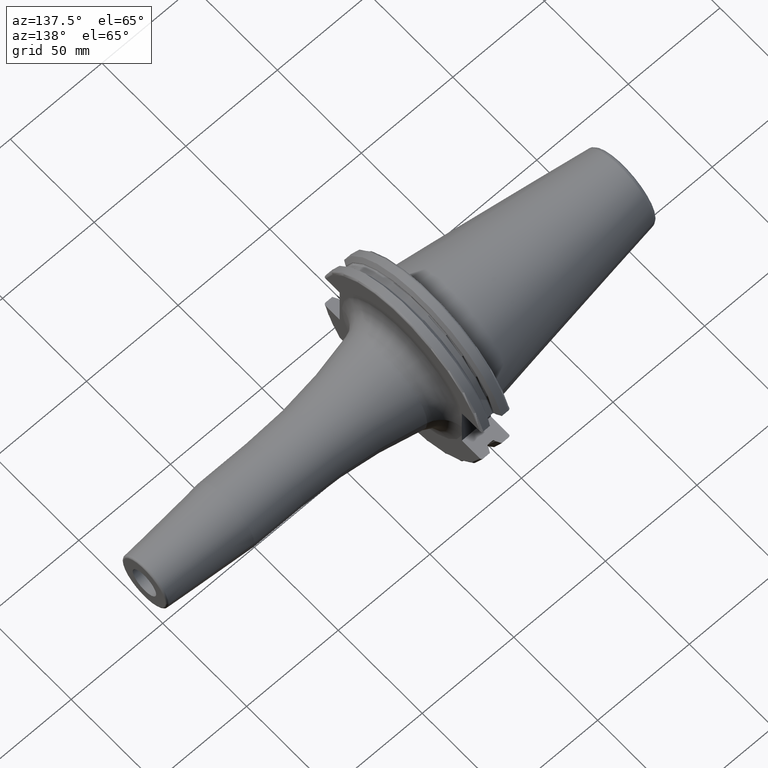
[diagram: clean part render]
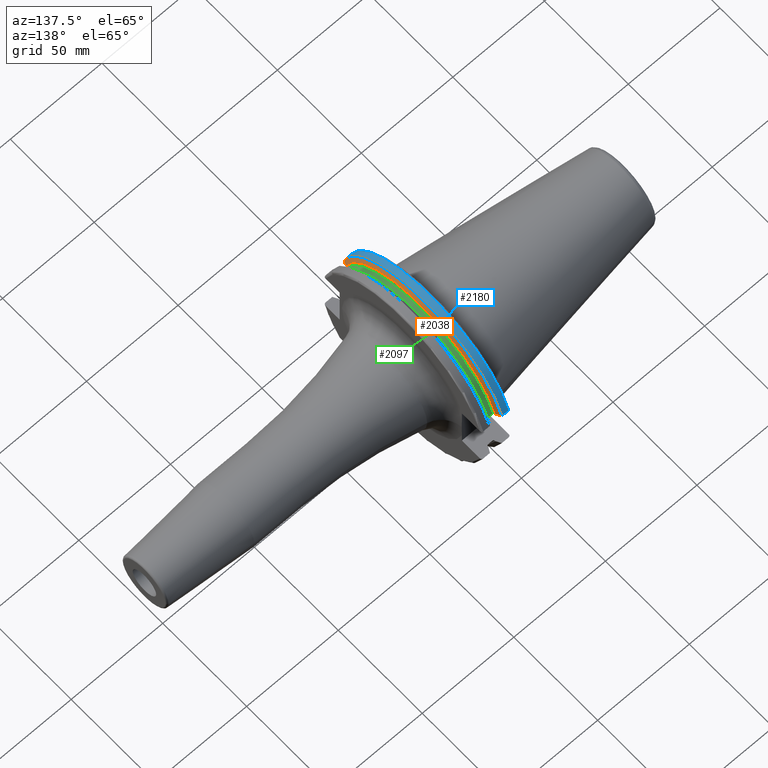
[diagram: same view with three faces highlighted in distinct colors, each labeled with its STEP entity id]
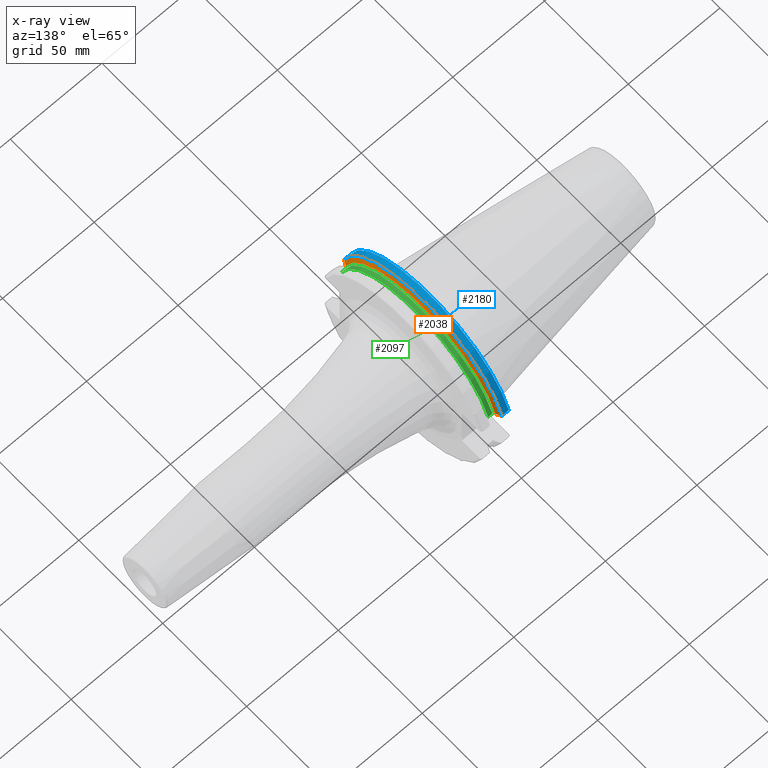
[diagram: x-ray of the same camera — body ghosted, the three highlighted faces saturated]
A machine part, auxiliary view with three faces highlighted in distinct colors.
The next image is the same camera in x-ray (body ghosted, the three faces saturated) — at least one of them is partly hidden behind the body in this view.
Their STEP definitions:

[orange] entity #2038 — the highlighted conical surface has half-angle 60 deg.
#322=CARTESIAN_POINT('',(9.2625E0,0.E0,0.E0));
#323=DIRECTION('',(1.E0,0.E0,0.E0));
#324=DIRECTION('',(0.E0,9.606411165078E-1,2.777924499957E-1));
#325=AXIS2_PLACEMENT_3D('',#322,#323,#324);
#353=CARTESIAN_POINT('',(7.934621614173E0,4.699929686974E1,1.29E1));
#354=CARTESIAN_POINT('',(8.085480915039E0,4.672833723043E1,1.29E1));
#355=CARTESIAN_POINT('',(8.384988643814E0,4.619006057422E1,1.29E1));
#356=CARTESIAN_POINT('',(8.827579780447E0,4.539363402665E1,1.29E1));
#357=CARTESIAN_POINT('',(9.118260754177E0,4.486988275438E1,1.29E1));
#358=CARTESIAN_POINT('',(9.2625E0,4.460981716077E1,1.29E1));
#360=CARTESIAN_POINT('',(9.2625E0,-4.460981716077E1,1.29E1));
#361=CARTESIAN_POINT('',(9.118283773553E0,-4.486984125009E1,1.29E1));
#362=CARTESIAN_POINT('',(8.827633549554E0,-4.539353719098E1,1.29E1));
#363=CARTESIAN_POINT('',(8.385043355543E0,-4.618996220278E1,1.29E1));
#364=CARTESIAN_POINT('',(8.085504386120E0,-4.672829507383E1,1.29E1));
#365=CARTESIAN_POINT('',(7.934621614173E0,-4.699929686974E1,1.29E1));
#500=CARTESIAN_POINT('',(7.934621614173E0,0.E0,0.E0));
#501=DIRECTION('',(1.E0,0.E0,0.E0));
#502=DIRECTION('',(0.E0,9.643354064066E-1,2.646832521159E-1));
#503=AXIS2_PLACEMENT_3D('',#500,#501,#502);
#1316=CARTESIAN_POINT('',(9.2625E0,4.460981716077E1,1.29E1));
#1318=VERTEX_POINT('',#1316);
#1328=CARTESIAN_POINT('',(9.2625E0,-4.460981716077E1,1.29E1));
#1330=VERTEX_POINT('',#1328);
#1354=VERTEX_POINT('',#353);
#1355=VERTEX_POINT('',#365);
#2025=CARTESIAN_POINT('',(8.598560807087E0,0.E0,0.E0));
#2026=DIRECTION('',(-1.E0,0.E0,0.E0));
#2027=DIRECTION('',(0.E0,1.E0,0.E0));
#2028=AXIS2_PLACEMENT_3D('',#2025,#2026,#2027);
#2029=CONICAL_SURFACE('',#2028,4.758752358474E1,6.E1);
#2030=ORIENTED_EDGE('',*,*,#1998,.T.);
#2031=ORIENTED_EDGE('',*,*,#1956,.T.);
#2033=ORIENTED_EDGE('',*,*,#2032,.T.);
#2035=ORIENTED_EDGE('',*,*,#2034,.F.);
#2036=EDGE_LOOP('',(#2030,#2031,#2033,#2035));
#2037=FACE_OUTER_BOUND('',#2036,.F.);
#2038=ADVANCED_FACE('',(#2037),#2029,.T.);
#326=CIRCLE('',#325,4.643754716948E1);
#359=B_SPLINE_CURVE_WITH_KNOTS('',3,(#353,#354,#355,#356,#357,#358),
.UNSPECIFIED.,.F.,.F.,(4,1,1,4),(0.E0,3.333333333333E-1,6.666666666667E-1,1.E0),
.UNSPECIFIED.);
#366=B_SPLINE_CURVE_WITH_KNOTS('',3,(#360,#361,#362,#363,#364,#365),
.UNSPECIFIED.,.F.,.F.,(4,1,1,4),(0.E0,3.333333333333E-1,6.666666666667E-1,1.E0),
.UNSPECIFIED.);
#504=CIRCLE('',#503,4.87375E1);
#1956=EDGE_CURVE('',#1318,#1330,#326,.T.);
#1998=EDGE_CURVE('',#1354,#1318,#359,.T.);
#2032=EDGE_CURVE('',#1330,#1355,#366,.T.);
#2034=EDGE_CURVE('',#1354,#1355,#504,.T.);

[blue] entity #2180 — the highlighted cylindrical surface (partial cylindrical patch) has radius 48.7375 mm, axis along (1, 0, 0).
#353=CARTESIAN_POINT('',(7.934621614173E0,4.699929686974E1,1.29E1));
#365=CARTESIAN_POINT('',(7.934621614173E0,-4.699929686974E1,1.29E1));
#496=DIRECTION('',(1.E0,0.E0,0.E0));
#497=VECTOR('',#496,3.734621614173E0);
#498=CARTESIAN_POINT('',(4.2E0,4.699929686974E1,1.29E1));
#499=LINE('',#498,#497);
#500=CARTESIAN_POINT('',(7.934621614173E0,0.E0,0.E0));
#501=DIRECTION('',(1.E0,0.E0,0.E0));
#502=DIRECTION('',(0.E0,9.643354064066E-1,2.646832521159E-1));
#503=AXIS2_PLACEMENT_3D('',#500,#501,#502);
#505=DIRECTION('',(1.E0,0.E0,0.E0));
#506=VECTOR('',#505,3.734621614173E0);
#507=CARTESIAN_POINT('',(4.2E0,-4.699929686974E1,1.29E1));
#508=LINE('',#507,#506);
#538=CARTESIAN_POINT('',(4.2E0,0.E0,0.E0));
#539=DIRECTION('',(1.E0,0.E0,0.E0));
#540=DIRECTION('',(0.E0,9.643354064066E-1,2.646832521159E-1));
#541=AXIS2_PLACEMENT_3D('',#538,#539,#540);
#1354=VERTEX_POINT('',#353);
#1355=VERTEX_POINT('',#365);
#1382=CARTESIAN_POINT('',(4.2E0,4.699929686974E1,1.29E1));
#1383=VERTEX_POINT('',#1382);
#1386=CARTESIAN_POINT('',(4.2E0,-4.699929686974E1,1.29E1));
#1387=VERTEX_POINT('',#1386);
#2168=CARTESIAN_POINT('',(-1.076325E2,0.E0,0.E0));
#2169=DIRECTION('',(1.E0,0.E0,0.E0));
#2170=DIRECTION('',(0.E0,-1.E0,0.E0));
#2171=AXIS2_PLACEMENT_3D('',#2168,#2169,#2170);
#2172=CYLINDRICAL_SURFACE('',#2171,4.87375E1);
#2173=ORIENTED_EDGE('',*,*,#2000,.T.);
#2174=ORIENTED_EDGE('',*,*,#2034,.T.);
#2175=ORIENTED_EDGE('',*,*,#2066,.F.);
#2177=ORIENTED_EDGE('',*,*,#2176,.F.);
#2178=EDGE_LOOP('',(#2173,#2174,#2175,#2177));
#2179=FACE_OUTER_BOUND('',#2178,.F.);
#2180=ADVANCED_FACE('',(#2179),#2172,.T.);
#504=CIRCLE('',#503,4.87375E1);
#542=CIRCLE('',#541,4.87375E1);
#2000=EDGE_CURVE('',#1383,#1354,#499,.T.);
#2034=EDGE_CURVE('',#1354,#1355,#504,.T.);
#2066=EDGE_CURVE('',#1387,#1355,#508,.T.);
#2176=EDGE_CURVE('',#1383,#1387,#542,.T.);

[green] entity #2097 — the highlighted cylindrical surface (partial cylindrical patch) has radius 45.5 mm, axis along (1, 0, 0).
#371=CARTESIAN_POINT('',(1.00125E1,4.363301502303E1,1.29E1));
#391=CARTESIAN_POINT('',(1.00125E1,-4.363301502303E1,1.29E1));
#398=DIRECTION('',(1.E0,0.E0,0.E0));
#399=VECTOR('',#398,2.325E0);
#400=CARTESIAN_POINT('',(1.00125E1,4.363301502303E1,1.29E1));
#401=LINE('',#400,#399);
#402=DIRECTION('',(1.E0,0.E0,0.E0));
#403=VECTOR('',#402,2.325E0);
#404=CARTESIAN_POINT('',(1.00125E1,-4.363301502303E1,1.29E1));
#405=LINE('',#404,#403);
#406=CARTESIAN_POINT('',(1.00125E1,0.E0,0.E0));
#407=DIRECTION('',(1.E0,0.E0,0.E0));
#408=DIRECTION('',(0.E0,9.589673631435E-1,2.835164835165E-1));
#409=AXIS2_PLACEMENT_3D('',#406,#407,#408);
#433=CARTESIAN_POINT('',(1.23375E1,0.E0,0.E0));
#434=DIRECTION('',(1.E0,0.E0,0.E0));
#435=DIRECTION('',(0.E0,9.589673631435E-1,2.835164835165E-1));
#436=AXIS2_PLACEMENT_3D('',#433,#434,#435);
#1332=VERTEX_POINT('',#371);
#1333=VERTEX_POINT('',#391);
#1334=CARTESIAN_POINT('',(1.23375E1,4.363301502303E1,1.29E1));
#1335=VERTEX_POINT('',#1334);
#1336=CARTESIAN_POINT('',(1.23375E1,-4.363301502303E1,1.29E1));
#1337=VERTEX_POINT('',#1336);
#2085=CARTESIAN_POINT('',(7.325E0,0.E0,0.E0));
#2086=DIRECTION('',(1.E0,0.E0,0.E0));
#2087=DIRECTION('',(0.E0,-1.E0,0.E0));
#2088=AXIS2_PLACEMENT_3D('',#2085,#2086,#2087);
#2089=CYLINDRICAL_SURFACE('',#2088,4.55E1);
#2090=ORIENTED_EDGE('',*,*,#2018,.T.);
#2092=ORIENTED_EDGE('',*,*,#2091,.T.);
#2093=ORIENTED_EDGE('',*,*,#2047,.F.);
#2094=ORIENTED_EDGE('',*,*,#2078,.F.);
#2095=EDGE_LOOP('',(#2090,#2092,#2093,#2094));
#2096=FACE_OUTER_BOUND('',#2095,.F.);
#2097=ADVANCED_FACE('',(#2096),#2089,.T.);
#410=CIRCLE('',#409,4.55E1);
#437=CIRCLE('',#436,4.55E1);
#2018=EDGE_CURVE('',#1332,#1335,#401,.T.);
#2047=EDGE_CURVE('',#1333,#1337,#405,.T.);
#2078=EDGE_CURVE('',#1332,#1333,#410,.T.);
#2091=EDGE_CURVE('',#1335,#1337,#437,.T.);